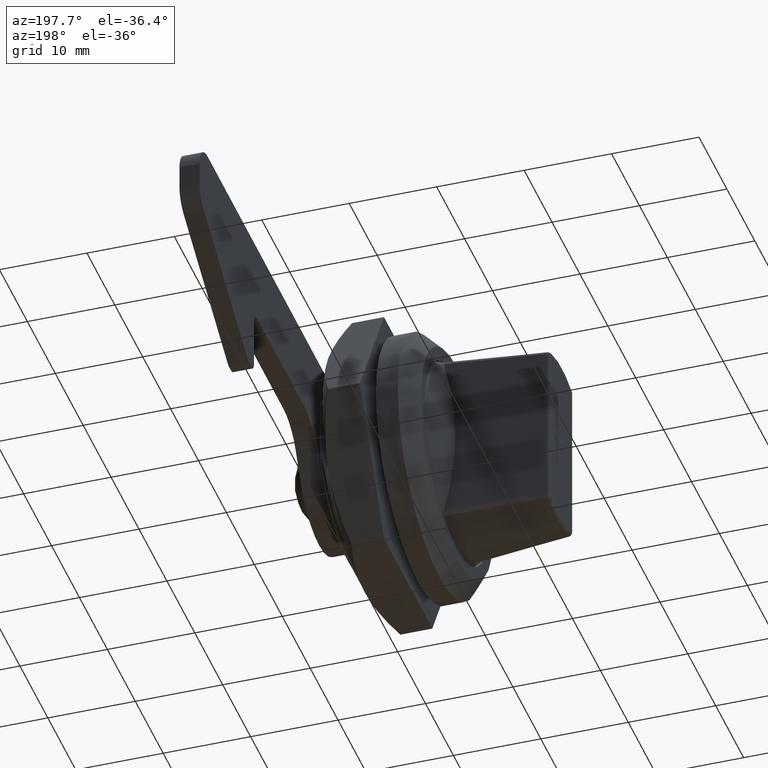
[diagram: clean part render]
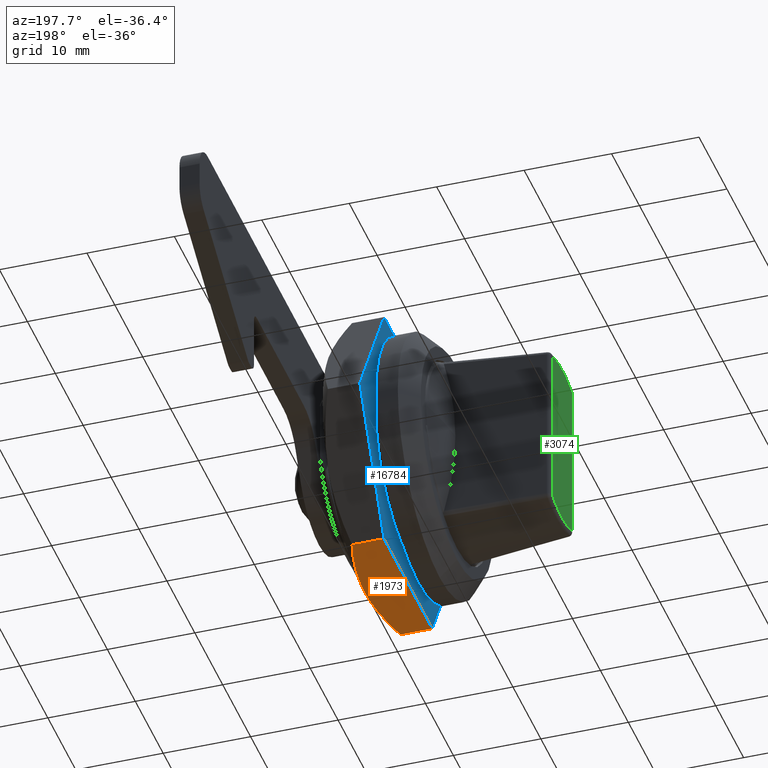
[diagram: same view with three faces highlighted in distinct colors, each labeled with its STEP entity id]
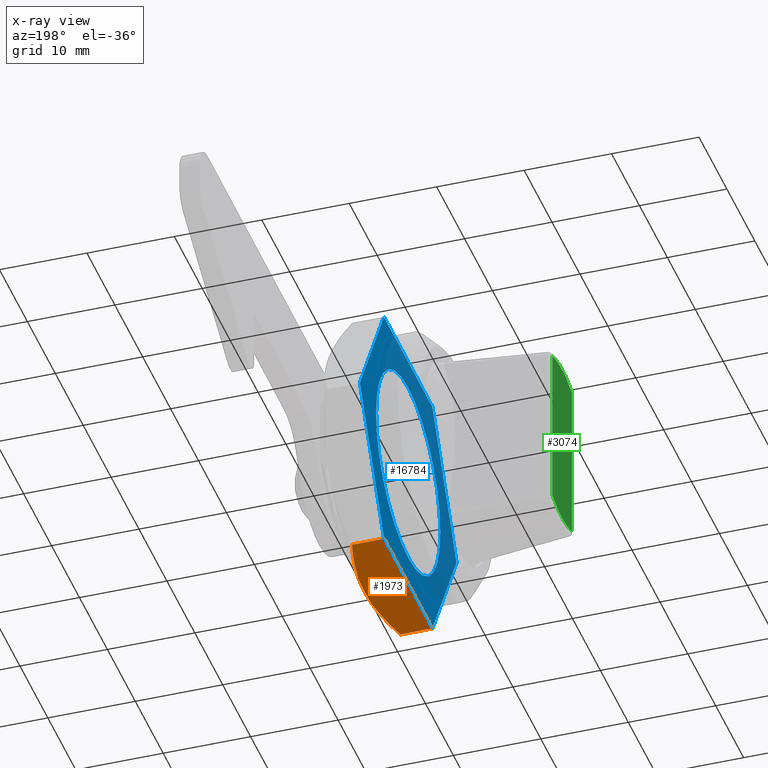
[diagram: x-ray of the same camera — body ghosted, the three highlighted faces saturated]
A machine part, auxiliary view with three faces highlighted in distinct colors.
The next image is the same camera in x-ray (body ghosted, the three faces saturated) — at least one of them is partly hidden behind the body in this view.
Their STEP definitions:

[orange] entity #1973 — the highlighted planar face has unit normal (0, 0, 1).
#1144 = ORIENTED_EDGE ( 'NONE', *, *, #20750, .F. ) ;
#1973 = ADVANCED_FACE ( 'NONE', ( #21718 ), #23669, .F. ) ;
#2497 = CARTESIAN_POINT ( 'NONE',  ( 7.259939241380133800, -4.064490100099038500, -14.99999999999999800 ) ) ;
#3913 = CARTESIAN_POINT ( 'NONE',  ( -2.917399707850806900, -4.874208683354538600, -14.99999999999999800 ) ) ;
#4188 = CARTESIAN_POINT ( 'NONE',  ( 8.660254037844600500, 995.0000000000000000, -15.00000000000000000 ) ) ;
#4735 = CARTESIAN_POINT ( 'NONE',  ( 8.660254037844600500, 0.0000000000000000000, -15.00000000000000000 ) ) ;
#4811 = EDGE_CURVE ( 'NONE', #10738, #24861, #27871, .T. ) ;
#5292 = ORIENTED_EDGE ( 'NONE', *, *, #17469, .T. ) ;
#5360 = VECTOR ( 'NONE', #27539, 1000.000000000000000 ) ;
#6064 = CARTESIAN_POINT ( 'NONE',  ( -5.807457610947177600, -4.381389076804928200, -15.00000000000000200 ) ) ;
#6824 = CARTESIAN_POINT ( 'NONE',  ( 3.671711945063535200, -4.753331188742416600, -15.00000000000000000 ) ) ;
#8233 = CARTESIAN_POINT ( 'NONE',  ( -7.955993959308522700, -3.863556410715693900, -15.00000000000000200 ) ) ;
#8990 = CARTESIAN_POINT ( 'NONE',  ( 1.466655175411833500, -4.968885740584891400, -15.00000000000000000 ) ) ;
#9153 = ORIENTED_EDGE ( 'NONE', *, *, #15114, .F. ) ;
#10738 = VERTEX_POINT ( 'NONE', #14332 ) ;
#11171 = CARTESIAN_POINT ( 'NONE',  ( 0.0000000000000000000, -5.000000000000000000, -14.99999999984460100 ) ) ;
#11346 = AXIS2_PLACEMENT_3D ( 'NONE', #4188, #12870, #28036 ) ;
#11791 = LINE ( 'NONE', #4735, #16851 ) ;
#12870 = DIRECTION ( 'NONE',  ( 0.0000000000000000000, 0.0000000000000000000, 1.000000000000000000 ) ) ;
#13743 = VERTEX_POINT ( 'NONE', #21838 ) ;
#14332 = CARTESIAN_POINT ( 'NONE',  ( 8.660254037844451200, -3.660254037754500100, -15.00000000000000000 ) ) ;
#15114 = EDGE_CURVE ( 'NONE', #22215, #13743, #16839, .T. ) ;
#15182 = VECTOR ( 'NONE', #24519, 1000.000000000000000 ) ;
#15792 = CARTESIAN_POINT ( 'NONE',  ( 8.660254037844699900, 995.0000000000000000, -15.00000000000000000 ) ) ;
#16630 = CARTESIAN_POINT ( 'NONE',  ( -8.660254037844499200, 995.0000000000000000, -15.00000000000000000 ) ) ;
#16794 = CARTESIAN_POINT ( 'NONE',  ( 8.660254037844699900, 0.0000000000000000000, -15.00000000000000000 ) ) ;
#16839 = LINE ( 'NONE', #16630, #5360 ) ;
#16851 = VECTOR ( 'NONE', #17670, 1000.000000000000000 ) ;
#17469 = EDGE_CURVE ( 'NONE', #26473, #10738, #20942, .T. ) ;
#17590 = CARTESIAN_POINT ( 'NONE',  ( 8.660254037844451200, -3.660254037754500100, -15.00000000000000000 ) ) ;
#17670 = DIRECTION ( 'NONE',  ( -1.000000000000000000, 0.0000000000000000000, 0.0000000000000000000 ) ) ;
#18668 = ORIENTED_EDGE ( 'NONE', *, *, #4811, .T. ) ;
#18749 = ORIENTED_EDGE ( 'NONE', *, *, #20206, .T. ) ;
#19009 = CARTESIAN_POINT ( 'NONE',  ( -5.086199619602309600, -4.524471530970622300, -15.00000000000000000 ) ) ;
#19629 = CARTESIAN_POINT ( 'NONE',  ( 0.0000000000000000000, -5.000000000000000000, -14.99999999984460100 ) ) ;
#19763 = CARTESIAN_POINT ( 'NONE',  ( 5.841256279252879000, -4.401137878550641400, -14.99999999999999800 ) ) ;
#20206 = EDGE_CURVE ( 'NONE', #24861, #13743, #23566, .T. ) ;
#20750 = EDGE_CURVE ( 'NONE', #26473, #22215, #11791, .T. ) ;
#20942 = LINE ( 'NONE', #15792, #15182 ) ;
#21184 = CARTESIAN_POINT ( 'NONE',  ( -7.245265331205046300, -4.050201823064101700, -15.00000000000000000 ) ) ;
#21508 = EDGE_LOOP ( 'NONE', ( #5292, #18668, #18749, #9153, #1144 ) ) ;
#21718 = FACE_OUTER_BOUND ( 'NONE', #21508, .T. ) ;
#21838 = CARTESIAN_POINT ( 'NONE',  ( -8.660254037844520500, -3.660254037754500100, -15.00000000000000000 ) ) ;
#21946 = CARTESIAN_POINT ( 'NONE',  ( 2.940285371425623900, -4.845231835230137600, -15.00000000000000200 ) ) ;
#22215 = VERTEX_POINT ( 'NONE', #23525 ) ;
#23377 = CARTESIAN_POINT ( 'NONE',  ( -8.660254037844520500, -3.660254037754500100, -15.00000000000000000 ) ) ;
#23525 = CARTESIAN_POINT ( 'NONE',  ( -8.660254037844499200, 0.0000000000000000000, -15.00000000000000000 ) ) ;
#23566 = B_SPLINE_CURVE_WITH_KNOTS ( 'NONE', 3,
 ( #27659, #25460, #3913, #19009, #6064, #21184, #8233, #23377 ),
 .UNSPECIFIED., .F., .F.,
 ( 4, 2, 2, 4 ),
 ( 0.01509208027658683900, 0.01946142846101147100, 0.02164610255322378700, 0.02383077664543610200 ),
 .UNSPECIFIED. ) ;
#23669 = PLANE ( 'NONE',  #11346 ) ;
#24151 = CARTESIAN_POINT ( 'NONE',  ( 0.7321549951539499900, -4.999999999910091500, -15.00000000000000200 ) ) ;
#24519 = DIRECTION ( 'NONE',  ( 0.0000000000000000000, -1.000000000000000000, 0.0000000000000000000 ) ) ;
#24861 = VERTEX_POINT ( 'NONE', #19629 ) ;
#25460 = CARTESIAN_POINT ( 'NONE',  ( -1.463440508673939300, -4.999999999910661700, -14.99999999999999800 ) ) ;
#26473 = VERTEX_POINT ( 'NONE', #16794 ) ;
#27539 = DIRECTION ( 'NONE',  ( 0.0000000000000000000, -1.000000000000000000, 0.0000000000000000000 ) ) ;
#27659 = CARTESIAN_POINT ( 'NONE',  ( 0.0000000000000000000, -5.000000000000000000, -14.99999999984460100 ) ) ;
#27871 = B_SPLINE_CURVE_WITH_KNOTS ( 'NONE', 3,
 ( #17590, #2497, #19763, #6824, #21946, #8990, #24151, #11171 ),
 .UNSPECIFIED., .F., .F.,
 ( 4, 2, 2, 4 ),
 ( 0.006348191940059260900, 0.01072013610832305000, 0.01290610819245494400, 0.01509208027658683900 ),
 .UNSPECIFIED. ) ;
#28036 = DIRECTION ( 'NONE',  ( 1.000000000000000000, 0.0000000000000000000, 0.0000000000000000000 ) ) ;

[blue] entity #16784 — the highlighted planar face has unit normal (-1, 0, 0).
#1432 = DIRECTION ( 'NONE',  ( 0.0000000000000000000, 0.0000000000000000000, 1.000000000000000000 ) ) ;
#1440 = LINE ( 'NONE', #4101, #12247 ) ;
#1562 = EDGE_CURVE ( 'NONE', #20147, #27577, #7872, .T. ) ;
#1587 = AXIS2_PLACEMENT_3D ( 'NONE', #20226, #7280, #22404 ) ;
#1915 = CARTESIAN_POINT ( 'NONE',  ( 0.0000000000000000000, 0.0000000000000000000, 0.0000000000000000000 ) ) ;
#2020 = DIRECTION ( 'NONE',  ( -0.4999999999999986100, 0.0000000000000000000, -0.8660254037844394800 ) ) ;
#2077 = CARTESIAN_POINT ( 'NONE',  ( -8.660254037844499200, 0.0000000000000000000, -15.00000000000000000 ) ) ;
#2404 = VERTEX_POINT ( 'NONE', #8697 ) ;
#4068 = EDGE_CURVE ( 'NONE', #27577, #5157, #1440, .T. ) ;
#4101 = CARTESIAN_POINT ( 'NONE',  ( -8.660254037844399700, 0.0000000000000000000, 15.00000000000000000 ) ) ;
#4184 = CARTESIAN_POINT ( 'NONE',  ( 17.32050807568890200, 0.0000000000000000000, -1.989519660128279800E-013 ) ) ;
#4520 = ORIENTED_EDGE ( 'NONE', *, *, #1562, .T. ) ;
#4735 = CARTESIAN_POINT ( 'NONE',  ( 8.660254037844600500, 0.0000000000000000000, -15.00000000000000000 ) ) ;
#4941 = VERTEX_POINT ( 'NONE', #15613 ) ;
#5088 = VECTOR ( 'NONE', #15017, 999.9999999999998900 ) ;
#5115 = VECTOR ( 'NONE', #2020, 999.9999999999998900 ) ;
#5157 = VERTEX_POINT ( 'NONE', #7207 ) ;
#5500 = ORIENTED_EDGE ( 'NONE', *, *, #6788, .T. ) ;
#5657 = EDGE_LOOP ( 'NONE', ( #9335, #18148 ) ) ;
#5886 = CARTESIAN_POINT ( 'NONE',  ( -17.32050807568879900, 0.0000000000000000000, -1.136868377216159800E-013 ) ) ;
#6237 = DIRECTION ( 'NONE',  ( 0.0000000000000000000, 1.000000000000000000, 0.0000000000000000000 ) ) ;
#6262 = DIRECTION ( 'NONE',  ( 1.000000000000000000, 0.0000000000000000000, 6.510029927861020800E-015 ) ) ;
#6721 = CIRCLE ( 'NONE', #19640, 11.50000000026937900 ) ;
#6788 = EDGE_CURVE ( 'NONE', #4941, #26473, #10846, .T. ) ;
#7196 = VECTOR ( 'NONE', #18838, 1000.000000000000000 ) ;
#7207 = CARTESIAN_POINT ( 'NONE',  ( 8.660254037844399700, 0.0000000000000000000, 15.00000000000000000 ) ) ;
#7280 = DIRECTION ( 'NONE',  ( 0.0000000000000000000, 1.000000000000000000, 0.0000000000000000000 ) ) ;
#7872 = LINE ( 'NONE', #27580, #7196 ) ;
#7922 = ORIENTED_EDGE ( 'NONE', *, *, #20750, .T. ) ;
#8697 = CARTESIAN_POINT ( 'NONE',  ( -2.693809619813690300E-010, 0.0000000000000000000, 11.50000000026936900 ) ) ;
#9335 = ORIENTED_EDGE ( 'NONE', *, *, #18186, .F. ) ;
#9676 = CARTESIAN_POINT ( 'NONE',  ( 8.660254037844399700, 0.0000000000000000000, 15.00000000000000000 ) ) ;
#10222 = DIRECTION ( 'NONE',  ( 0.4999999999999998900, 0.0000000000000000000, -0.8660254037844387100 ) ) ;
#10474 = VECTOR ( 'NONE', #10222, 1000.000000000000000 ) ;
#10846 = LINE ( 'NONE', #4184, #5115 ) ;
#11791 = LINE ( 'NONE', #4735, #16851 ) ;
#12118 = CARTESIAN_POINT ( 'NONE',  ( -2.693795536375499700E-010, 0.0000000000000000000, -11.50000000026936900 ) ) ;
#12247 = VECTOR ( 'NONE', #6262, 1000.000000000000000 ) ;
#13294 = ORIENTED_EDGE ( 'NONE', *, *, #4068, .T. ) ;
#14372 = DIRECTION ( 'NONE',  ( 0.0000000000000000000, 1.000000000000000000, 0.0000000000000000000 ) ) ;
#14669 = PLANE ( 'NONE',  #21636 ) ;
#14784 = ORIENTED_EDGE ( 'NONE', *, *, #16571, .T. ) ;
#15017 = DIRECTION ( 'NONE',  ( -0.4999999999999990600, 0.0000000000000000000, 0.8660254037844392600 ) ) ;
#15613 = CARTESIAN_POINT ( 'NONE',  ( 17.32050807568890200, 0.0000000000000000000, -1.989519660128279800E-013 ) ) ;
#15661 = EDGE_CURVE ( 'NONE', #22215, #20147, #22324, .T. ) ;
#15943 = ORIENTED_EDGE ( 'NONE', *, *, #15661, .T. ) ;
#16571 = EDGE_CURVE ( 'NONE', #5157, #4941, #27762, .T. ) ;
#16784 = ADVANCED_FACE ( 'NONE', ( #18583, #23670 ), #14669, .T. ) ;
#16794 = CARTESIAN_POINT ( 'NONE',  ( 8.660254037844699900, 0.0000000000000000000, -15.00000000000000000 ) ) ;
#16851 = VECTOR ( 'NONE', #17670, 1000.000000000000000 ) ;
#17670 = DIRECTION ( 'NONE',  ( -1.000000000000000000, 0.0000000000000000000, 0.0000000000000000000 ) ) ;
#18148 = ORIENTED_EDGE ( 'NONE', *, *, #20918, .F. ) ;
#18186 = EDGE_CURVE ( 'NONE', #2404, #23785, #6721, .T. ) ;
#18583 = FACE_BOUND ( 'NONE', #5657, .T. ) ;
#18838 = DIRECTION ( 'NONE',  ( 0.4999999999999998900, 0.0000000000000000000, 0.8660254037844387100 ) ) ;
#19511 = CARTESIAN_POINT ( 'NONE',  ( -8.660254037844399700, 0.0000000000000000000, 15.00000000000000000 ) ) ;
#19640 = AXIS2_PLACEMENT_3D ( 'NONE', #27351, #14372, #1432 ) ;
#20147 = VERTEX_POINT ( 'NONE', #5886 ) ;
#20226 = CARTESIAN_POINT ( 'NONE',  ( -2.693809619813690300E-010, 0.0000000000000000000, 0.0000000000000000000 ) ) ;
#20750 = EDGE_CURVE ( 'NONE', #26473, #22215, #11791, .T. ) ;
#20918 = EDGE_CURVE ( 'NONE', #23785, #2404, #26339, .T. ) ;
#21355 = DIRECTION ( 'NONE',  ( 0.0000000000000000000, 0.0000000000000000000, 1.000000000000000000 ) ) ;
#21636 = AXIS2_PLACEMENT_3D ( 'NONE', #1915, #6237, #21355 ) ;
#22215 = VERTEX_POINT ( 'NONE', #23525 ) ;
#22324 = LINE ( 'NONE', #2077, #5088 ) ;
#22404 = DIRECTION ( 'NONE',  ( 0.0000000000000000000, 0.0000000000000000000, 1.000000000000000000 ) ) ;
#23525 = CARTESIAN_POINT ( 'NONE',  ( -8.660254037844499200, 0.0000000000000000000, -15.00000000000000000 ) ) ;
#23670 = FACE_OUTER_BOUND ( 'NONE', #27312, .T. ) ;
#23785 = VERTEX_POINT ( 'NONE', #12118 ) ;
#26339 = CIRCLE ( 'NONE', #1587, 11.50000000026937900 ) ;
#26473 = VERTEX_POINT ( 'NONE', #16794 ) ;
#27312 = EDGE_LOOP ( 'NONE', ( #13294, #14784, #5500, #7922, #15943, #4520 ) ) ;
#27351 = CARTESIAN_POINT ( 'NONE',  ( -2.693809619813690300E-010, 0.0000000000000000000, 0.0000000000000000000 ) ) ;
#27577 = VERTEX_POINT ( 'NONE', #19511 ) ;
#27580 = CARTESIAN_POINT ( 'NONE',  ( -17.32050807568879900, 0.0000000000000000000, -1.136868377216159800E-013 ) ) ;
#27762 = LINE ( 'NONE', #9676, #10474 ) ;

[green] entity #3074 — the highlighted planar face has unit normal (1, 0, 0).
#95 = EDGE_CURVE ( 'NONE', #20412, #6210, #14657, .T. ) ;
#462 = CARTESIAN_POINT ( 'NONE',  ( -12.00000000000024000, 0.0000000000000000000, 0.0000000000000000000 ) ) ;
#1602 = VERTEX_POINT ( 'NONE', #10335 ) ;
#1718 = EDGE_CURVE ( 'NONE', #2251, #1602, #23105, .T. ) ;
#2251 = VERTEX_POINT ( 'NONE', #6527 ) ;
#2293 = AXIS2_PLACEMENT_3D ( 'NONE', #13153, #26114, #23945 ) ;
#2647 = DIRECTION ( 'NONE',  ( 0.0000000000000000000, 0.0000000000000000000, -1.000000000000000000 ) ) ;
#2679 = AXIS2_PLACEMENT_3D ( 'NONE', #19110, #6164, #21288 ) ;
#3074 = ADVANCED_FACE ( 'NONE', ( #6843 ), #21262, .F. ) ;
#4080 = EDGE_CURVE ( 'NONE', #13576, #2251, #23075, .T. ) ;
#5739 = LINE ( 'NONE', #8494, #16549 ) ;
#6164 = DIRECTION ( 'NONE',  ( -1.000000000000000000, -0.0000000000000000000, -0.0000000000000000000 ) ) ;
#6210 = VERTEX_POINT ( 'NONE', #20735 ) ;
#6527 = CARTESIAN_POINT ( 'NONE',  ( -12.00000000000024000, -3.539933559216984700, 9.391064249456279700 ) ) ;
#6843 = FACE_OUTER_BOUND ( 'NONE', #26409, .T. ) ;
#8310 = DIRECTION ( 'NONE',  ( 1.000000000000000000, 0.0000000000000000000, 0.0000000000000000000 ) ) ;
#8494 = CARTESIAN_POINT ( 'NONE',  ( -12.00000000000024000, 3.539933559216979800, -9.708243919476441200 ) ) ;
#10335 = CARTESIAN_POINT ( 'NONE',  ( -12.00000000000024000, 3.539933559216979800, 9.391064249456279700 ) ) ;
#10404 = CARTESIAN_POINT ( 'NONE',  ( -12.00000000000024000, 0.0000000000000000000, 10.50000000000000000 ) ) ;
#11579 = VECTOR ( 'NONE', #25749, 1000.000000000000000 ) ;
#13153 = CARTESIAN_POINT ( 'NONE',  ( -12.00000000000024000, 0.0000000000000000000, 0.0000000000000000000 ) ) ;
#13576 = VERTEX_POINT ( 'NONE', #17304 ) ;
#14009 = ORIENTED_EDGE ( 'NONE', *, *, #1718, .T. ) ;
#14657 = CIRCLE ( 'NONE', #2293, 10.03609572199700000 ) ;
#15570 = DIRECTION ( 'NONE',  ( -1.000000000000000000, -0.0000000000000000000, -0.0000000000000000000 ) ) ;
#16549 = VECTOR ( 'NONE', #26304, 1000.000000000000000 ) ;
#16606 = AXIS2_PLACEMENT_3D ( 'NONE', #10404, #8310, #23458 ) ;
#17003 = ORIENTED_EDGE ( 'NONE', *, *, #23300, .T. ) ;
#17092 = EDGE_CURVE ( 'NONE', #1602, #20412, #5739, .T. ) ;
#17304 = CARTESIAN_POINT ( 'NONE',  ( -12.00000000000024000, -3.539933559216984700, -9.391064249456279700 ) ) ;
#19110 = CARTESIAN_POINT ( 'NONE',  ( -12.00000000000024000, 0.0000000000000000000, 0.0000000000000000000 ) ) ;
#20412 = VERTEX_POINT ( 'NONE', #25644 ) ;
#20735 = CARTESIAN_POINT ( 'NONE',  ( -12.00000000000024000, 0.0000000000000000000, -10.03609572199700000 ) ) ;
#20776 = AXIS2_PLACEMENT_3D ( 'NONE', #462, #15570, #2647 ) ;
#21262 = PLANE ( 'NONE',  #16606 ) ;
#21288 = DIRECTION ( 'NONE',  ( 0.0000000000000000000, 0.0000000000000000000, -1.000000000000000000 ) ) ;
#22094 = ORIENTED_EDGE ( 'NONE', *, *, #95, .T. ) ;
#23075 = LINE ( 'NONE', #23584, #11579 ) ;
#23105 = CIRCLE ( 'NONE', #2679, 10.03609572199700000 ) ;
#23300 = EDGE_CURVE ( 'NONE', #6210, #13576, #24281, .T. ) ;
#23458 = DIRECTION ( 'NONE',  ( 0.0000000000000000000, 0.0000000000000000000, -1.000000000000000000 ) ) ;
#23584 = CARTESIAN_POINT ( 'NONE',  ( -12.00000000000024000, -3.539933559216984700, 9.708243919473801500 ) ) ;
#23807 = ORIENTED_EDGE ( 'NONE', *, *, #4080, .T. ) ;
#23945 = DIRECTION ( 'NONE',  ( 0.0000000000000000000, -2.664535259100376100E-015, -1.000000000000000000 ) ) ;
#24281 = CIRCLE ( 'NONE', #20776, 10.03609572199700000 ) ;
#25644 = CARTESIAN_POINT ( 'NONE',  ( -12.00000000000024000, 3.539933559216979800, -9.391064249456279700 ) ) ;
#25749 = DIRECTION ( 'NONE',  ( 0.0000000000000000000, 0.0000000000000000000, 1.000000000000000000 ) ) ;
#26114 = DIRECTION ( 'NONE',  ( -1.000000000000000000, -0.0000000000000000000, -0.0000000000000000000 ) ) ;
#26304 = DIRECTION ( 'NONE',  ( -0.0000000000000000000, -0.0000000000000000000, -1.000000000000000000 ) ) ;
#26409 = EDGE_LOOP ( 'NONE', ( #23807, #14009, #27794, #22094, #17003 ) ) ;
#27794 = ORIENTED_EDGE ( 'NONE', *, *, #17092, .T. ) ;